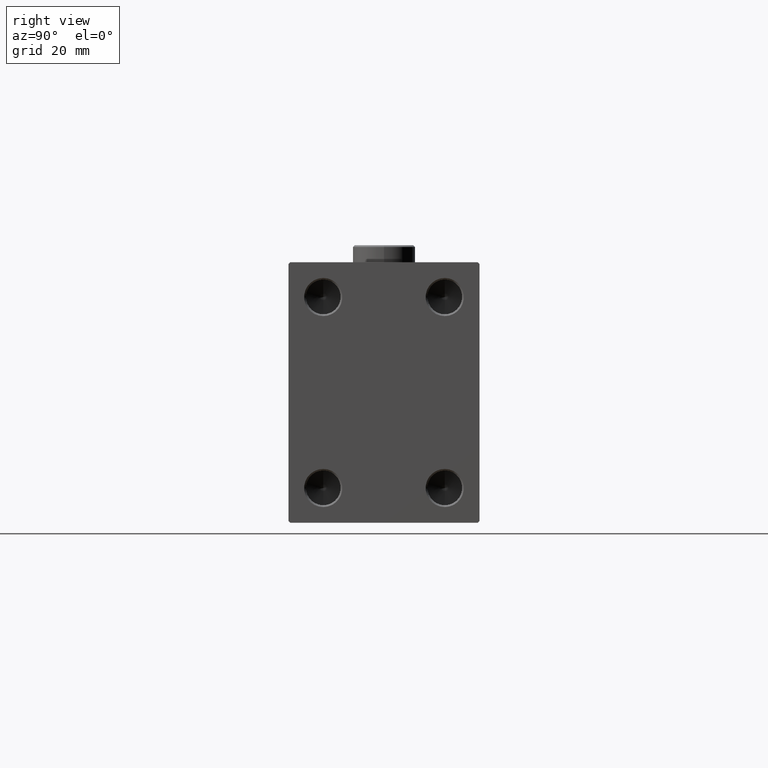
[diagram: clean part render]
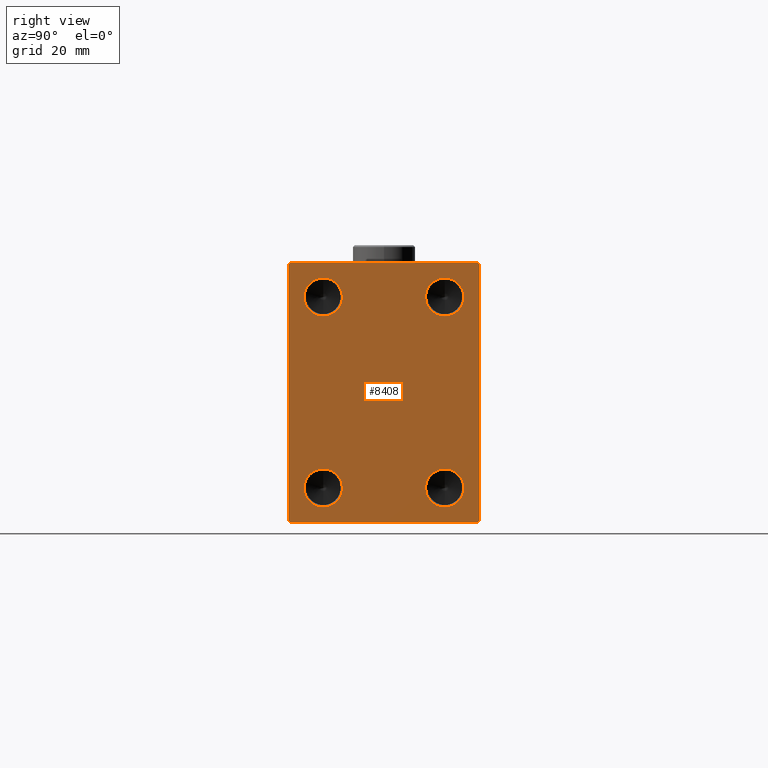
[diagram: same view with one face highlighted and labeled with its STEP entity id]
A machine part, right view. The second image highlights one B-rep face of the part: STEP entity #8408.
In plain terms, the highlighted planar face has unit normal (1, 0, 0).
Its self-contained STEP definition (entity closure, byte-faithful):
#457 = EDGE_CURVE ( 'NONE', #2303, #13030, #21423, .T. ) ;
#670 = VERTEX_POINT ( 'NONE', #38253 ) ;
#846 = LINE ( 'NONE', #35896, #27499 ) ;
#1309 = VERTEX_POINT ( 'NONE', #41270 ) ;
#2303 = VERTEX_POINT ( 'NONE', #13826 ) ;
#2518 = AXIS2_PLACEMENT_3D ( 'NONE', #37968, #45336, #38416 ) ;
#2673 = DIRECTION ( 'NONE',  ( 0.000000000000000000, 0.000000000000000000, -1.000000000000000000 ) ) ;
#3076 = CARTESIAN_POINT ( 'NONE',  ( 175.0000000000000000, -27.49999999999999645, 37.49999999999998579 ) ) ;
#3121 = DIRECTION ( 'NONE',  ( 1.000000000000000000, -0.000000000000000000, -0.000000000000000000 ) ) ;
#3157 = VECTOR ( 'NONE', #20160, 1000.000000000000000 ) ;
#3465 = VERTEX_POINT ( 'NONE', #37619 ) ;
#3515 = EDGE_LOOP ( 'NONE', ( #18867, #35477 ) ) ;
#3616 = DIRECTION ( 'NONE',  ( 0.000000000000000000, 0.000000000000000000, -1.000000000000000000 ) ) ;
#4315 = DIRECTION ( 'NONE',  ( -0.000000000000000000, 0.7071067811865474617, 0.7071067811865474617 ) ) ;
#4373 = DIRECTION ( 'NONE',  ( 0.000000000000000000, 1.000000000000000000, 0.000000000000000000 ) ) ;
#4863 = AXIS2_PLACEMENT_3D ( 'NONE', #7442, #21489, #35564 ) ;
#5385 = ORIENTED_EDGE ( 'NONE', *, *, #26807, .T. ) ;
#5882 = EDGE_CURVE ( 'NONE', #13030, #2303, #42915, .T. ) ;
#6345 = EDGE_CURVE ( 'NONE', #670, #29799, #14738, .T. ) ;
#6391 = PLANE ( 'NONE',  #2518 ) ;
#6401 = CARTESIAN_POINT ( 'NONE',  ( 175.0000000000000000, 17.50000000000000000, -27.49999999999999645 ) ) ;
#6670 = VERTEX_POINT ( 'NONE', #8899 ) ;
#7306 = LINE ( 'NONE', #39567, #10742 ) ;
#7442 = CARTESIAN_POINT ( 'NONE',  ( 175.0000000000000000, 17.50000000000000000, 27.50000000000000000 ) ) ;
#8408 = ADVANCED_FACE ( 'NONE', ( #10519, #24566, #35199, #31045, #10069 ), #6391, .T. ) ;
#8632 = CIRCLE ( 'NONE', #31435, 5.500000000000032863 ) ;
#8899 = CARTESIAN_POINT ( 'NONE',  ( 175.0000000000000000, -17.50000000000000000, -33.00000000000002842 ) ) ;
#9103 = DIRECTION ( 'NONE',  ( 0.000000000000000000, 0.000000000000000000, -1.000000000000000000 ) ) ;
#10069 = FACE_OUTER_BOUND ( 'NONE', #25547, .T. ) ;
#10506 = DIRECTION ( 'NONE',  ( 1.000000000000000000, -0.000000000000000000, -0.000000000000000000 ) ) ;
#10519 = FACE_BOUND ( 'NONE', #3515, .T. ) ;
#10742 = VECTOR ( 'NONE', #11205, 1000.000000000000000 ) ;
#11025 = LINE ( 'NONE', #42816, #13543 ) ;
#11108 = ORIENTED_EDGE ( 'NONE', *, *, #24657, .F. ) ;
#11205 = DIRECTION ( 'NONE',  ( -0.000000000000000000, 0.7071067811865672237, -0.7071067811865279218 ) ) ;
#11280 = CIRCLE ( 'NONE', #44415, 5.500000000000029310 ) ;
#11320 = DIRECTION ( 'NONE',  ( 0.000000000000000000, 0.000000000000000000, -1.000000000000000000 ) ) ;
#11457 = VERTEX_POINT ( 'NONE', #36570 ) ;
#11481 = EDGE_CURVE ( 'NONE', #29799, #17898, #846, .T. ) ;
#12484 = ORIENTED_EDGE ( 'NONE', *, *, #19908, .F. ) ;
#13030 = VERTEX_POINT ( 'NONE', #37549 ) ;
#13064 = DIRECTION ( 'NONE',  ( 0.000000000000000000, 0.000000000000000000, -1.000000000000000000 ) ) ;
#13255 = CARTESIAN_POINT ( 'NONE',  ( 175.0000000000000000, -26.99999999999996803, 37.49999999999998579 ) ) ;
#13294 = DIRECTION ( 'NONE',  ( 0.000000000000000000, -1.000000000000000000, -2.523234146875355998E-16 ) ) ;
#13440 = DIRECTION ( 'NONE',  ( 0.000000000000000000, 0.000000000000000000, -1.000000000000000000 ) ) ;
#13543 = VECTOR ( 'NONE', #25066, 1000.000000000000000 ) ;
#13810 = ORIENTED_EDGE ( 'NONE', *, *, #11481, .T. ) ;
#13826 = CARTESIAN_POINT ( 'NONE',  ( 175.0000000000000000, 17.50000000000000000, -33.00000000000002842 ) ) ;
#14164 = VERTEX_POINT ( 'NONE', #15032 ) ;
#14738 = LINE ( 'NONE', #35958, #25268 ) ;
#14928 = CARTESIAN_POINT ( 'NONE',  ( 175.0000000000000000, 27.50000000000000355, -37.50000000000000000 ) ) ;
#15032 = CARTESIAN_POINT ( 'NONE',  ( 175.0000000000000000, -17.50000000000000000, -21.99999999999996092 ) ) ;
#15163 = CIRCLE ( 'NONE', #4863, 5.500000000000029310 ) ;
#15295 = CIRCLE ( 'NONE', #28535, 5.500000000000029310 ) ;
#15577 = VERTEX_POINT ( 'NONE', #43957 ) ;
#15688 = DIRECTION ( 'NONE',  ( 1.000000000000000000, -0.000000000000000000, -0.000000000000000000 ) ) ;
#15909 = EDGE_CURVE ( 'NONE', #3465, #670, #7306, .T. ) ;
#15926 = DIRECTION ( 'NONE',  ( 0.000000000000000000, 0.000000000000000000, -1.000000000000000000 ) ) ;
#16427 = EDGE_LOOP ( 'NONE', ( #12484, #19878 ) ) ;
#17217 = DIRECTION ( 'NONE',  ( 1.000000000000000000, -0.000000000000000000, -0.000000000000000000 ) ) ;
#17320 = ORIENTED_EDGE ( 'NONE', *, *, #457, .F. ) ;
#17450 = DIRECTION ( 'NONE',  ( 0.000000000000000000, 0.000000000000000000, -1.000000000000000000 ) ) ;
#17894 = CIRCLE ( 'NONE', #19324, 5.500000000000029310 ) ;
#17898 = VERTEX_POINT ( 'NONE', #29425 ) ;
#18503 = AXIS2_PLACEMENT_3D ( 'NONE', #43353, #29063, #11320 ) ;
#18843 = LINE ( 'NONE', #14928, #29210 ) ;
#18867 = ORIENTED_EDGE ( 'NONE', *, *, #40247, .F. ) ;
#19324 = AXIS2_PLACEMENT_3D ( 'NONE', #21564, #20887, #3616 ) ;
#19878 = ORIENTED_EDGE ( 'NONE', *, *, #33147, .F. ) ;
#19908 = EDGE_CURVE ( 'NONE', #14164, #6670, #8632, .T. ) ;
#20100 = VECTOR ( 'NONE', #13294, 1000.000000000000000 ) ;
#20160 = DIRECTION ( 'NONE',  ( -0.000000000000000000, -0.7071067811865279218, 0.7071067811865671127 ) ) ;
#20887 = DIRECTION ( 'NONE',  ( 1.000000000000000000, -0.000000000000000000, -0.000000000000000000 ) ) ;
#21178 = ORIENTED_EDGE ( 'NONE', *, *, #42146, .T. ) ;
#21423 = CIRCLE ( 'NONE', #18503, 5.500000000000032863 ) ;
#21489 = DIRECTION ( 'NONE',  ( 1.000000000000000000, -0.000000000000000000, -0.000000000000000000 ) ) ;
#21564 = CARTESIAN_POINT ( 'NONE',  ( 175.0000000000000000, -17.50000000000000000, 27.50000000000000000 ) ) ;
#23178 = CIRCLE ( 'NONE', #40873, 5.500000000000032863 ) ;
#23364 = LINE ( 'NONE', #3076, #35970 ) ;
#23428 = CARTESIAN_POINT ( 'NONE',  ( 175.0000000000000000, -27.49999999999999645, 36.99999999999992895 ) ) ;
#23469 = EDGE_CURVE ( 'NONE', #15577, #30786, #41877, .T. ) ;
#23608 = EDGE_CURVE ( 'NONE', #27819, #25196, #17894, .T. ) ;
#23734 = EDGE_CURVE ( 'NONE', #1309, #15577, #31622, .T. ) ;
#24551 = CARTESIAN_POINT ( 'NONE',  ( 175.0000000000000000, 17.50000000000000000, 27.50000000000000000 ) ) ;
#24566 = FACE_BOUND ( 'NONE', #32649, .T. ) ;
#24657 = EDGE_CURVE ( 'NONE', #25196, #27819, #11280, .T. ) ;
#25066 = DIRECTION ( 'NONE',  ( 0.000000000000000000, -0.7071067811865279218, -0.7071067811865672237 ) ) ;
#25196 = VERTEX_POINT ( 'NONE', #45534 ) ;
#25268 = VECTOR ( 'NONE', #4373, 1000.000000000000000 ) ;
#25547 = EDGE_LOOP ( 'NONE', ( #26890, #5385, #21178, #33057, #44326, #13810, #27711, #44721 ) ) ;
#26597 = CARTESIAN_POINT ( 'NONE',  ( 175.0000000000000000, -17.50000000000000000, 27.50000000000000000 ) ) ;
#26807 = EDGE_CURVE ( 'NONE', #30786, #40047, #11025, .T. ) ;
#26890 = ORIENTED_EDGE ( 'NONE', *, *, #23469, .T. ) ;
#27492 = CARTESIAN_POINT ( 'NONE',  ( 175.0000000000000000, 27.00000000000003197, -37.50000000000000000 ) ) ;
#27499 = VECTOR ( 'NONE', #4315, 1000.000000000000114 ) ;
#27711 = ORIENTED_EDGE ( 'NONE', *, *, #38076, .T. ) ;
#27819 = VERTEX_POINT ( 'NONE', #42793 ) ;
#28535 = AXIS2_PLACEMENT_3D ( 'NONE', #24551, #10506, #13064 ) ;
#28934 = AXIS2_PLACEMENT_3D ( 'NONE', #6401, #17217, #17450 ) ;
#29063 = DIRECTION ( 'NONE',  ( 1.000000000000000000, -0.000000000000000000, -0.000000000000000000 ) ) ;
#29169 = ORIENTED_EDGE ( 'NONE', *, *, #23608, .F. ) ;
#29210 = VECTOR ( 'NONE', #32698, 1000.000000000000000 ) ;
#29232 = EDGE_LOOP ( 'NONE', ( #31828, #17320 ) ) ;
#29425 = CARTESIAN_POINT ( 'NONE',  ( 175.0000000000000000, 27.50000000000000355, -37.00000000000002842 ) ) ;
#29799 = VERTEX_POINT ( 'NONE', #27492 ) ;
#30786 = VERTEX_POINT ( 'NONE', #13255 ) ;
#30828 = CARTESIAN_POINT ( 'NONE',  ( 175.0000000000000000, 27.49999999999999645, 37.50000000000000000 ) ) ;
#31045 = FACE_BOUND ( 'NONE', #29232, .T. ) ;
#31435 = AXIS2_PLACEMENT_3D ( 'NONE', #36230, #15688, #15926 ) ;
#31622 = LINE ( 'NONE', #38765, #3157 ) ;
#31828 = ORIENTED_EDGE ( 'NONE', *, *, #5882, .F. ) ;
#32649 = EDGE_LOOP ( 'NONE', ( #11108, #29169 ) ) ;
#32698 = DIRECTION ( 'NONE',  ( 0.000000000000000000, -9.251858538542971581E-17, 1.000000000000000000 ) ) ;
#32806 = CARTESIAN_POINT ( 'NONE',  ( 175.0000000000000000, 17.50000000000000000, 33.00000000000004263 ) ) ;
#33057 = ORIENTED_EDGE ( 'NONE', *, *, #15909, .T. ) ;
#33147 = EDGE_CURVE ( 'NONE', #6670, #14164, #23178, .T. ) ;
#34032 = CARTESIAN_POINT ( 'NONE',  ( 175.0000000000000000, -17.50000000000000000, -27.49999999999999645 ) ) ;
#35199 = FACE_BOUND ( 'NONE', #16427, .T. ) ;
#35426 = VERTEX_POINT ( 'NONE', #32806 ) ;
#35477 = ORIENTED_EDGE ( 'NONE', *, *, #36295, .F. ) ;
#35564 = DIRECTION ( 'NONE',  ( 0.000000000000000000, 0.000000000000000000, -1.000000000000000000 ) ) ;
#35896 = CARTESIAN_POINT ( 'NONE',  ( 175.0000000000000000, 32.25000000000001421, -32.25000000000001421 ) ) ;
#35958 = CARTESIAN_POINT ( 'NONE',  ( 175.0000000000000000, -27.49999999999999645, -37.50000000000000000 ) ) ;
#35970 = VECTOR ( 'NONE', #13440, 1000.000000000000000 ) ;
#36230 = CARTESIAN_POINT ( 'NONE',  ( 175.0000000000000000, -17.50000000000000000, -27.49999999999999645 ) ) ;
#36295 = EDGE_CURVE ( 'NONE', #11457, #35426, #15163, .T. ) ;
#36570 = CARTESIAN_POINT ( 'NONE',  ( 175.0000000000000000, 17.50000000000000000, 21.99999999999996447 ) ) ;
#37549 = CARTESIAN_POINT ( 'NONE',  ( 175.0000000000000000, 17.50000000000000000, -21.99999999999996092 ) ) ;
#37619 = CARTESIAN_POINT ( 'NONE',  ( 175.0000000000000000, -27.49999999999999645, -37.00000000000000000 ) ) ;
#37968 = CARTESIAN_POINT ( 'NONE',  ( 175.0000000000000000, 0.000000000000000000, 0.000000000000000000 ) ) ;
#38076 = EDGE_CURVE ( 'NONE', #17898, #1309, #18843, .T. ) ;
#38253 = CARTESIAN_POINT ( 'NONE',  ( 175.0000000000000000, -26.99999999999996803, -37.50000000000000000 ) ) ;
#38416 = DIRECTION ( 'NONE',  ( 0.000000000000000000, 0.000000000000000000, -1.000000000000000000 ) ) ;
#38765 = CARTESIAN_POINT ( 'NONE',  ( 175.0000000000000000, 32.25000000000076028, 32.24999999999897682 ) ) ;
#39567 = CARTESIAN_POINT ( 'NONE',  ( 175.0000000000000000, -32.24999999999923261, -32.25000000000103029 ) ) ;
#40047 = VERTEX_POINT ( 'NONE', #23428 ) ;
#40247 = EDGE_CURVE ( 'NONE', #35426, #11457, #15295, .T. ) ;
#40682 = DIRECTION ( 'NONE',  ( 1.000000000000000000, -0.000000000000000000, -0.000000000000000000 ) ) ;
#40873 = AXIS2_PLACEMENT_3D ( 'NONE', #34032, #3121, #2673 ) ;
#41270 = CARTESIAN_POINT ( 'NONE',  ( 175.0000000000000000, 27.49999999999999645, 37.00000000000000000 ) ) ;
#41877 = LINE ( 'NONE', #30828, #20100 ) ;
#42146 = EDGE_CURVE ( 'NONE', #40047, #3465, #23364, .T. ) ;
#42793 = CARTESIAN_POINT ( 'NONE',  ( 175.0000000000000000, -17.50000000000000000, 21.99999999999996447 ) ) ;
#42816 = CARTESIAN_POINT ( 'NONE',  ( 175.0000000000000000, -32.25000000000072475, 32.24999999999893419 ) ) ;
#42915 = CIRCLE ( 'NONE', #28934, 5.500000000000032863 ) ;
#43353 = CARTESIAN_POINT ( 'NONE',  ( 175.0000000000000000, 17.50000000000000000, -27.49999999999999645 ) ) ;
#43957 = CARTESIAN_POINT ( 'NONE',  ( 175.0000000000000000, 27.00000000000002487, 37.50000000000000000 ) ) ;
#44326 = ORIENTED_EDGE ( 'NONE', *, *, #6345, .T. ) ;
#44415 = AXIS2_PLACEMENT_3D ( 'NONE', #26597, #40682, #9103 ) ;
#44721 = ORIENTED_EDGE ( 'NONE', *, *, #23734, .T. ) ;
#45336 = DIRECTION ( 'NONE',  ( 1.000000000000000000, 0.000000000000000000, 0.000000000000000000 ) ) ;
#45534 = CARTESIAN_POINT ( 'NONE',  ( 175.0000000000000000, -17.50000000000000000, 33.00000000000004263 ) ) ;